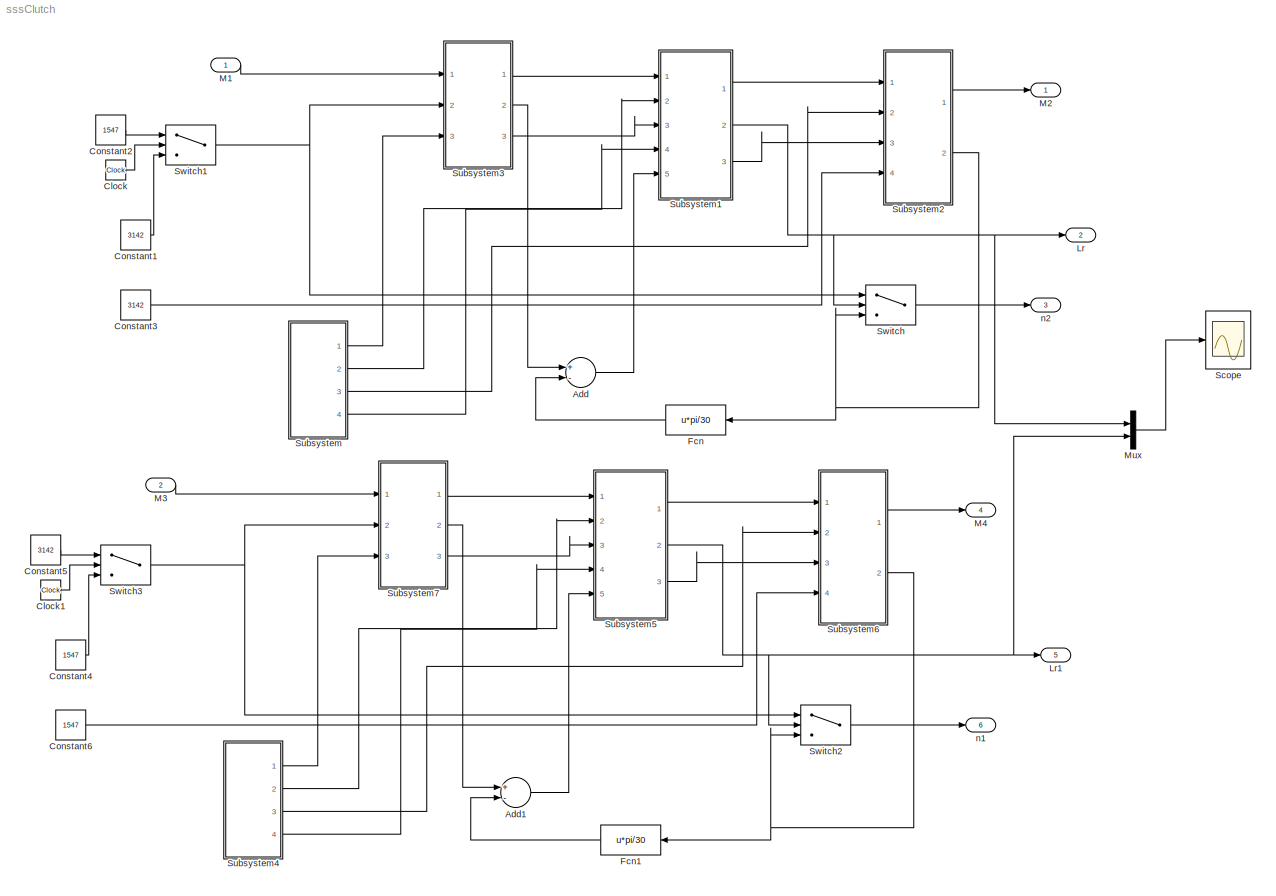
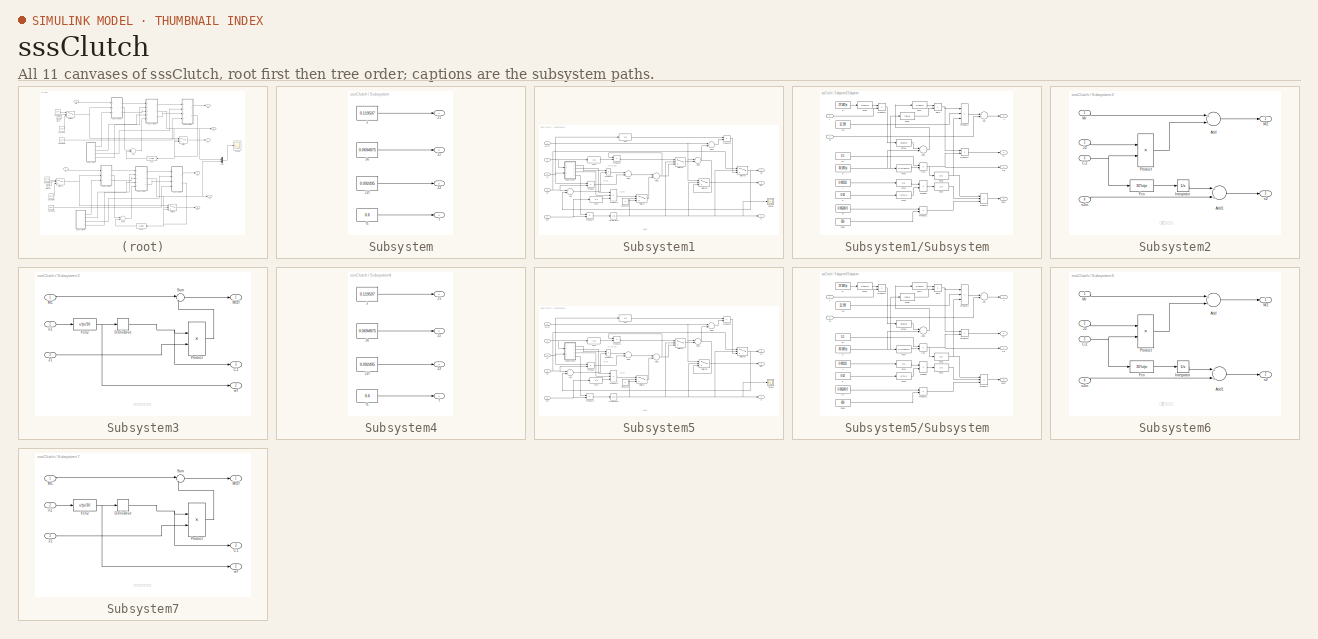
[diagram: thumbnail index - all 11 canvases of the model, root first then tree order]
MODEL sssClutch
KIND model
BLOCK [Sum] Add
  InputSameDT = off
  Inputs = +-
  OutDataTypeStr = Inherit: Inherit via internal rule
  Ports = [2, 1]
  SID = 2
  SaturateOnIntegerOverflow = off
BLOCK [Sum] Add1
  InputSameDT = off
  Inputs = +-
  OutDataTypeStr = Inherit: Inherit via internal rule
  Ports = [2, 1]
  SID = 223
  SaturateOnIntegerOverflow = off
BLOCK [Clock] Clock
  SID = 219
BLOCK [Clock] Clock1
  SID = 224
BLOCK [Constant] Constant1
  SID = 220
  Value = 3142
BLOCK [Constant] Constant2
  SID = 221
  Value = 1547
BLOCK [Constant] Constant3
  SID = 210
  Value = 3142
BLOCK [Constant] Constant4
  SID = 225
  Value = 1547
BLOCK [Constant] Constant5
  SID = 226
  Value = 3142
BLOCK [Constant] Constant6
  SID = 227
  Value = 1547
BLOCK [Fcn] Fcn
  Expr = u*pi/30
  SID = 43
BLOCK [Fcn] Fcn1
  Expr = u*pi/30
  SID = 228
BLOCK [Outport] Lr
  IconDisplay = Port number
  Port = 2
  SID = 45
BLOCK [Outport] Lr1
  IconDisplay = Port number
  Port = 5
  SID = 335
BLOCK [Inport] M1
  IconDisplay = Port number
  SID = 24
BLOCK [Outport] M2
  IconDisplay = Port number
  SID = 44
BLOCK [Inport] M3
  IconDisplay = Port number
  Port = 2
  SID = 222
BLOCK [Outport] M4
  IconDisplay = Port number
  Port = 4
  SID = 334
BLOCK [Mux] Mux
  DisplayOption = bar
  Inputs = 2
  Ports = [2, 1]
  SID = 337
BLOCK [Scope] Scope
  DataFormat = StructureWithTime
  Floating = off
  NumInputPorts = 1
  Ports = [1]
  SID = 208
  SampleTime = 0
  ShowLegends = off
  TimeRange = 100
  YMax = 15
  YMin = 0
BLOCK [SubSystem] Subsystem
  Ports = [0, 4]
  RequestExecContextInheritance = off
  SID = 12
BLOCK [Constant] Subsystem/J
  SID = 124
  Value = 0.119507
BLOCK [Outport] Subsystem/J1
  IconDisplay = Port number
  SID = 14
BLOCK [Outport] Subsystem/J2
  IconDisplay = Port number
  Port = 3
  SID = 37
BLOCK [Constant] Subsystem/J2l
  SID = 126
  Value = 0.092495
BLOCK [Constant] Subsystem/Jk
  SID = 125
  Value = 0.0694875
BLOCK [Outport] Subsystem/Jz
  IconDisplay = Port number
  Port = 2
  SID = 36
BLOCK [Outport] Subsystem/f
  IconDisplay = Port number
  Port = 4
  SID = 38
BLOCK [Constant] Subsystem/f1
  SID = 127
  Value = 0.6
BLOCK [SubSystem] Subsystem1
  Ports = [5, 3]
  RequestExecContextInheritance = off
  SID = 26
BLOCK [Sum] Subsystem1/Add
  InputSameDT = off
  Inputs = +-
  OutDataTypeStr = Inherit: Inherit via internal rule
  Ports = [2, 1]
  SID = 81
  SaturateOnIntegerOverflow = off
BLOCK [Sum] Subsystem1/Add1
  InputSameDT = off
  Inputs = +-
  OutDataTypeStr = Inherit: Inherit via internal rule
  Ports = [2, 1]
  SID = 82
  SaturateOnIntegerOverflow = off
BLOCK [Sum] Subsystem1/Add2
  InputSameDT = off
  Inputs = +-
  OutDataTypeStr = Inherit: Inherit via internal rule
  Ports = [2, 1]
  SID = 83
  SaturateOnIntegerOverflow = off
BLOCK [Sum] Subsystem1/Add3
  InputSameDT = off
  OutDataTypeStr = Inherit: Inherit via internal rule
  Ports = [2, 1]
  SID = 84
  SaturateOnIntegerOverflow = off
BLOCK [Sum] Subsystem1/Add4
  InputSameDT = off
  Inputs = +-
  OutDataTypeStr = Inherit: Inherit via internal rule
  Ports = [2, 1]
  SID = 85
  SaturateOnIntegerOverflow = off
BLOCK [Inport] Subsystem1/C1
  IconDisplay = Port number
  Port = 3
  SID = 78
BLOCK [Outport] Subsystem1/C2
  IconDisplay = Port number
  Port = 3
  SID = 110
BLOCK [Constant] Subsystem1/Constant
  SID = 86
  Value = 0
BLOCK [Fcn] Subsystem1/Fcn
  Expr = 1/u
  SID = 87
BLOCK [Fcn] Subsystem1/Fcn1
  Expr = 1+u
  SID = 88
BLOCK [Fcn] Subsystem1/Fcn2
  Expr = u^2
  SID = 89
BLOCK [Integrator] Subsystem1/Integrator
  InitialCondition = 15
  LimitOutput = on
  LowerSaturationLimit = 0
  Ports = [1, 1]
  SID = 202
  UpperSaturationLimit = 15
BLOCK [Inport] Subsystem1/Jz
  IconDisplay = Port number
  Port = 2
  SID = 77
BLOCK [Outport] Subsystem1/Lr
  IconDisplay = Port number
  Port = 2
  SID = 109
BLOCK [Inport] Subsystem1/Mfzf
  IconDisplay = Port number
  SID = 76
BLOCK [Outport] Subsystem1/Mr
  IconDisplay = Port number
  SID = 108
BLOCK [Product] Subsystem1/Product
  InputSameDT = off
  OutDataTypeStr = Inherit: Inherit via internal rule
  Ports = [2, 1]
  RndMeth = Floor
  SID = 91
  SaturateOnIntegerOverflow = off
BLOCK [Product] Subsystem1/Product1
  InputSameDT = off
  OutDataTypeStr = Inherit: Inherit via internal rule
  Ports = [2, 1]
  RndMeth = Floor
  SID = 92
  SaturateOnIntegerOverflow = off
BLOCK [Product] Subsystem1/Product2
  InputSameDT = off
  OutDataTypeStr = Inherit: Inherit via internal rule
  Ports = [2, 1]
  RndMeth = Floor
  SID = 93
  SaturateOnIntegerOverflow = off
BLOCK [Product] Subsystem1/Product3
  InputSameDT = off
  Inputs = 3
  OutDataTypeStr = Inherit: Inherit via internal rule
  Ports = [3, 1]
  RndMeth = Floor
  SID = 94
  SaturateOnIntegerOverflow = off
BLOCK [Product] Subsystem1/Product4
  InputSameDT = off
  OutDataTypeStr = Inherit: Inherit via internal rule
  Ports = [2, 1]
  RndMeth = Floor
  SID = 95
  SaturateOnIntegerOverflow = off
BLOCK [Product] Subsystem1/Product5
  InputSameDT = off
  OutDataTypeStr = Inherit: Inherit via internal rule
  Ports = [2, 1]
  RndMeth = Floor
  SID = 96
  SaturateOnIntegerOverflow = off
BLOCK [Scope] Subsystem1/Scope
  DataFormat = StructureWithTime
  Floating = off
  NumInputPorts = 1
  Ports = [1]
  SID = 201
  SampleTime = 0
  SaveName = ScopeData1
  ShowLegends = off
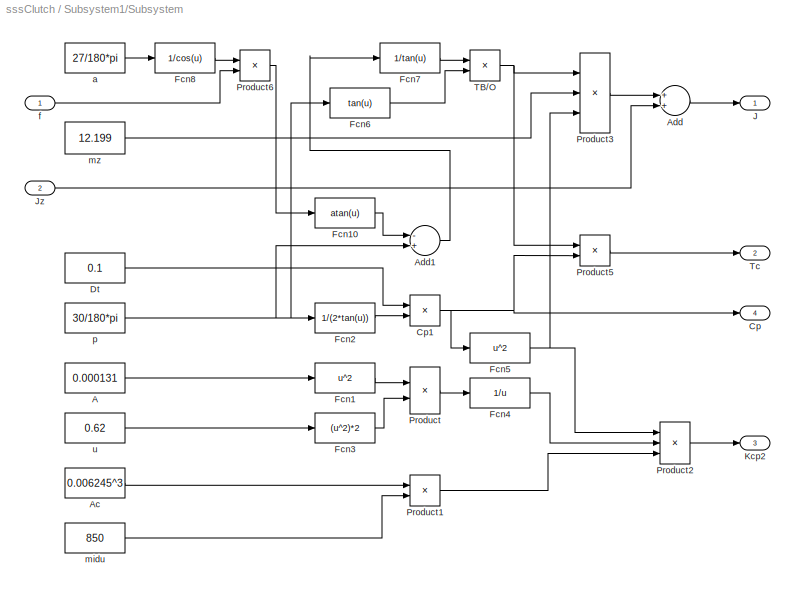
BLOCK [SubSystem] Subsystem1/Subsystem
  Ports = [2, 4]
  RequestExecContextInheritance = off
  SID = 97
BLOCK [Constant] Subsystem1/Subsystem/A
  SID = 163
  Value = 0.000131
BLOCK [Constant] Subsystem1/Subsystem/Ac
  SID = 164
  Value = 0.006245^3
BLOCK [Sum] Subsystem1/Subsystem/Add
  InputSameDT = off
  OutDataTypeStr = Inherit: Inherit via internal rule
  Ports = [2, 1]
  SID = 165
  SaturateOnIntegerOverflow = off
BLOCK [Sum] Subsystem1/Subsystem/Add1
  InputSameDT = off
  Inputs = -+
  OutDataTypeStr = Inherit: Inherit via internal rule
  Ports = [2, 1]
  SID = 166
  SaturateOnIntegerOverflow = off
BLOCK [Outport] Subsystem1/Subsystem/Cp
  IconDisplay = Port number
  Port = 4
  SID = 193
BLOCK [Product] Subsystem1/Subsystem/Cp1
  InputSameDT = off
  OutDataTypeStr = Inherit: Inherit via internal rule
  Ports = [2, 1]
  SID = 167
  SaturateOnIntegerOverflow = off
BLOCK [Constant] Subsystem1/Subsystem/Dt
  SID = 168
  Value = 0.1
BLOCK [Fcn] Subsystem1/Subsystem/Fcn1
  Expr = u^2
  SID = 169
BLOCK [Fcn] Subsystem1/Subsystem/Fcn10
  Expr = atan(u)
  SID = 170
BLOCK [Fcn] Subsystem1/Subsystem/Fcn2
  Expr = 1/(2*tan(u))
  SID = 171
BLOCK [Fcn] Subsystem1/Subsystem/Fcn3
  Expr = (u^2)*2
  SID = 172
BLOCK [Fcn] Subsystem1/Subsystem/Fcn4
  Expr = 1/u
  SID = 173
BLOCK [Fcn] Subsystem1/Subsystem/Fcn5
  Expr = u^2
  SID = 174
BLOCK [Fcn] Subsystem1/Subsystem/Fcn6
  Expr = tan(u)
  SID = 175
BLOCK [Fcn] Subsystem1/Subsystem/Fcn7
  Expr = 1/tan(u)
  SID = 176
BLOCK [Fcn] Subsystem1/Subsystem/Fcn8
  Expr = 1/cos(u)
  SID = 177
BLOCK [Outport] Subsystem1/Subsystem/J
  IconDisplay = Port number
  SID = 190
BLOCK [Inport] Subsystem1/Subsystem/Jz
  IconDisplay = Port number
  Port = 2
  SID = 162
BLOCK [Outport] Subsystem1/Subsystem/Kcp2
  IconDisplay = Port number
  Port = 3
  SID = 192
BLOCK [Product] Subsystem1/Subsystem/Product
  InputSameDT = off
  OutDataTypeStr = Inherit: Inherit via internal rule
  Ports = [2, 1]
  SID = 178
  SaturateOnIntegerOverflow = off
BLOCK [Product] Subsystem1/Subsystem/Product1
  InputSameDT = off
  OutDataTypeStr = Inherit: Inherit via internal rule
  Ports = [2, 1]
  SID = 179
  SaturateOnIntegerOverflow = off
BLOCK [Product] Subsystem1/Subsystem/Product2
  InputSameDT = off
  Inputs = 3
  OutDataTypeStr = Inherit: Inherit via internal rule
  Ports = [3, 1]
  SID = 180
  SaturateOnIntegerOverflow = off
BLOCK [Product] Subsystem1/Subsystem/Product3
  InputSameDT = off
  Inputs = 3
  OutDataTypeStr = Inherit: Inherit via internal rule
  Ports = [3, 1]
  SID = 181
  SaturateOnIntegerOverflow = off
BLOCK [Product] Subsystem1/Subsystem/Product5
  InputSameDT = off
  OutDataTypeStr = Inherit: Inherit via internal rule
  Ports = [2, 1]
  SID = 182
  SaturateOnIntegerOverflow = off
BLOCK [Product] Subsystem1/Subsystem/Product6
  InputSameDT = off
  OutDataTypeStr = Inherit: Inherit via internal rule
  Ports = [2, 1]
  SID = 183
  SaturateOnIntegerOverflow = off
BLOCK [Product] Subsystem1/Subsystem/TB//O
  InputSameDT = off
  OutDataTypeStr = Inherit: Inherit via internal rule
  Ports = [2, 1]
  SID = 184
  SaturateOnIntegerOverflow = off
BLOCK [Outport] Subsystem1/Subsystem/Tc
  IconDisplay = Port number
  Port = 2
  SID = 191
BLOCK [Constant] Subsystem1/Subsystem/a
  SID = 185
  Value = 27/180*pi
BLOCK [Inport] Subsystem1/Subsystem/f
  IconDisplay = Port number
  SID = 161
BLOCK [Constant] Subsystem1/Subsystem/midu
  SID = 186
  Value = 850
BLOCK [Constant] Subsystem1/Subsystem/mz
  SID = 187
  Value = 12.199
BLOCK [Constant] Subsystem1/Subsystem/p
  SID = 188
  Value = 30/180*pi
BLOCK [Constant] Subsystem1/Subsystem/u
  SID = 189
  Value = 0.62
BLOCK [Switch] Subsystem1/Switch
  InputSameDT = off
  SID = 104
  SaturateOnIntegerOverflow = off
BLOCK [Switch] Subsystem1/Switch1
  InputSameDT = off
  SID = 105
  SaturateOnIntegerOverflow = off
BLOCK [Switch] Subsystem1/Switch2
  InputSameDT = off
  SID = 106
  SaturateOnIntegerOverflow = off
BLOCK [Switch] Subsystem1/Switch3
  InputSameDT = off
  SID = 107
  SaturateOnIntegerOverflow = off
BLOCK [Inport] Subsystem1/Wz
  IconDisplay = Port number
  Port = 5
  SID = 80
BLOCK [Inport] Subsystem1/f
  IconDisplay = Port number
  Port = 4
  SID = 79
BLOCK [SubSystem] Subsystem2
  Ports = [4, 2]
  RequestExecContextInheritance = off
  SID = 9
BLOCK [Sum] Subsystem2/Add
  InputSameDT = off
  Inputs = +-
  OutDataTypeStr = Inherit: Inherit via internal rule
  Ports = [2, 1]
  SID = 116
  SaturateOnIntegerOverflow = off
BLOCK [Sum] Subsystem2/Add1
  InputSameDT = off
  OutDataTypeStr = Inherit: Inherit via internal rule
  Ports = [2, 1]
  SID = 117
  SaturateOnIntegerOverflow = off
BLOCK [Inport] Subsystem2/C2
  IconDisplay = Port number
  Port = 3
  SID = 114
BLOCK [Fcn] Subsystem2/Fcn
  Expr = 30*u/pi
  SID = 118
BLOCK [Integrator] Subsystem2/Integrator
  Ports = [1, 1]
  SID = 119
BLOCK [Inport] Subsystem2/J2
  IconDisplay = Port number
  Port = 2
  SID = 113
BLOCK [Outport] Subsystem2/M2
  IconDisplay = Port number
  SID = 121
BLOCK [Inport] Subsystem2/Mr
  IconDisplay = Port number
  SID = 112
BLOCK [Product] Subsystem2/Product
  InputSameDT = off
  OutDataTypeStr = Inherit: Inherit via internal rule
  Ports = [2, 1]
  RndMeth = Floor
  SID = 120
  SaturateOnIntegerOverflow = off
BLOCK [Outport] Subsystem2/n2
  IconDisplay = Port number
  Port = 2
  SID = 122
BLOCK [Inport] Subsystem2/n2in
  IconDisplay = Port number
  Port = 4
  SID = 115
BLOCK [SubSystem] Subsystem3
  Ports = [3, 3]
  RequestExecContextInheritance = off
  SID = 15
BLOCK [Outport] Subsystem3/C1
  IconDisplay = Port number
  Port = 3
  SID = 74
BLOCK [Derivative] Subsystem3/Derivative
  SID = 67
BLOCK [Fcn] Subsystem3/Fcn2
  Expr = u*pi/30
  SID = 68
BLOCK [Inport] Subsystem3/J1
  IconDisplay = Port number
  Port = 3
  SID = 64
BLOCK [Inport] Subsystem3/M1
  IconDisplay = Port number
  SID = 62
BLOCK [Outport] Subsystem3/Mfzf
  IconDisplay = Port number
  SID = 72
BLOCK [Product] Subsystem3/Product
  InputSameDT = off
  OutDataTypeStr = Inherit: Inherit via internal rule
  Ports = [2, 1]
  RndMeth = Floor
  SID = 69
  SaturateOnIntegerOverflow = off
BLOCK [Sum] Subsystem3/Sum
  IconShape = round
  InputSameDT = off
  Inputs = |+-
  OutDataTypeStr = Inherit: Inherit via internal rule
  Ports = [2, 1]
  SID = 70
  SaturateOnIntegerOverflow = off
BLOCK [Inport] Subsystem3/n1
  IconDisplay = Port number
  Port = 2
  SID = 63
BLOCK [Outport] Subsystem3/wf
  IconDisplay = Port number
  Port = 2
  SID = 73
BLOCK [SubSystem] Subsystem4
  Ports = [0, 4]
  RequestExecContextInheritance = off
  SID = 230
BLOCK [Constant] Subsystem4/J
  SID = 231
  Value = 0.119507
BLOCK [Outport] Subsystem4/J1
  IconDisplay = Port number
  SID = 235
BLOCK [Outport] Subsystem4/J2
  IconDisplay = Port number
  Port = 3
  SID = 237
BLOCK [Constant] Subsystem4/J2l
  SID = 232
  Value = 0.092495
BLOCK [Constant] Subsystem4/Jk
  SID = 233
  Value = 0.0694875
BLOCK [Outport] Subsystem4/Jz
  IconDisplay = Port number
  Port = 2
  SID = 236
BLOCK [Outport] Subsystem4/f
  IconDisplay = Port number
  Port = 4
  SID = 238
BLOCK [Constant] Subsystem4/f1
  SID = 234
  Value = 0.6
BLOCK [SubSystem] Subsystem5
  Ports = [5, 3]
  RequestExecContextInheritance = off
  SID = 239
BLOCK [Sum] Subsystem5/Add
  InputSameDT = off
  Inputs = +-
  OutDataTypeStr = Inherit: Inherit via internal rule
  Ports = [2, 1]
  SID = 245
  SaturateOnIntegerOverflow = off
BLOCK [Sum] Subsystem5/Add1
  InputSameDT = off
  Inputs = +-
  OutDataTypeStr = Inherit: Inherit via internal rule
  Ports = [2, 1]
  SID = 246
  SaturateOnIntegerOverflow = off
BLOCK [Sum] Subsystem5/Add2
  InputSameDT = off
  Inputs = +-
  OutDataTypeStr = Inherit: Inherit via internal rule
  Ports = [2, 1]
  SID = 247
  SaturateOnIntegerOverflow = off
BLOCK [Sum] Subsystem5/Add3
  InputSameDT = off
  OutDataTypeStr = Inherit: Inherit via internal rule
  Ports = [2, 1]
  SID = 248
  SaturateOnIntegerOverflow = off
BLOCK [Sum] Subsystem5/Add4
  InputSameDT = off
  Inputs = +-
  OutDataTypeStr = Inherit: Inherit via internal rule
  Ports = [2, 1]
  SID = 249
  SaturateOnIntegerOverflow = off
BLOCK [Inport] Subsystem5/C1
  IconDisplay = Port number
  Port = 3
  SID = 242
BLOCK [Outport] Subsystem5/C2
  IconDisplay = Port number
  Port = 3
  SID = 302
BLOCK [Constant] Subsystem5/Constant
  SID = 250
  Value = 0
BLOCK [Fcn] Subsystem5/Fcn
  Expr = 1/u
  SID = 251
BLOCK [Fcn] Subsystem5/Fcn1
  Expr = 1+u
  SID = 252
BLOCK [Fcn] Subsystem5/Fcn2
  Expr = u^2
  SID = 253
BLOCK [Integrator] Subsystem5/Integrator
  LimitOutput = on
  LowerSaturationLimit = 0
  Ports = [1, 1]
  SID = 254
  UpperSaturationLimit = 15
BLOCK [Inport] Subsystem5/Jz
  IconDisplay = Port number
  Port = 2
  SID = 241
BLOCK [Outport] Subsystem5/Lr
  IconDisplay = Port number
  Port = 2
  SID = 301
BLOCK [Inport] Subsystem5/Mfzf
  IconDisplay = Port number
  SID = 240
BLOCK [Outport] Subsystem5/Mr
  IconDisplay = Port number
  SID = 300
BLOCK [Product] Subsystem5/Product
  InputSameDT = off
  OutDataTypeStr = Inherit: Inherit via internal rule
  Ports = [2, 1]
  RndMeth = Floor
  SID = 255
  SaturateOnIntegerOverflow = off
BLOCK [Product] Subsystem5/Product1
  InputSameDT = off
  OutDataTypeStr = Inherit: Inherit via internal rule
  Ports = [2, 1]
  RndMeth = Floor
  SID = 256
  SaturateOnIntegerOverflow = off
BLOCK [Product] Subsystem5/Product2
  InputSameDT = off
  OutDataTypeStr = Inherit: Inherit via internal rule
  Ports = [2, 1]
  RndMeth = Floor
  SID = 257
  SaturateOnIntegerOverflow = off
BLOCK [Product] Subsystem5/Product3
  InputSameDT = off
  Inputs = 3
  OutDataTypeStr = Inherit: Inherit via internal rule
  Ports = [3, 1]
  RndMeth = Floor
  SID = 258
  SaturateOnIntegerOverflow = off
BLOCK [Product] Subsystem5/Product4
  InputSameDT = off
  OutDataTypeStr = Inherit: Inherit via internal rule
  Ports = [2, 1]
  RndMeth = Floor
  SID = 259
  SaturateOnIntegerOverflow = off
BLOCK [Product] Subsystem5/Product5
  InputSameDT = off
  OutDataTypeStr = Inherit: Inherit via internal rule
  Ports = [2, 1]
  RndMeth = Floor
  SID = 260
  SaturateOnIntegerOverflow = off
BLOCK [Scope] Subsystem5/Scope
  DataFormat = StructureWithTime
  Floating = off
  NumInputPorts = 1
  Ports = [1]
  SID = 261
  SampleTime = 0
  SaveName = ScopeData1
  ShowLegends = off
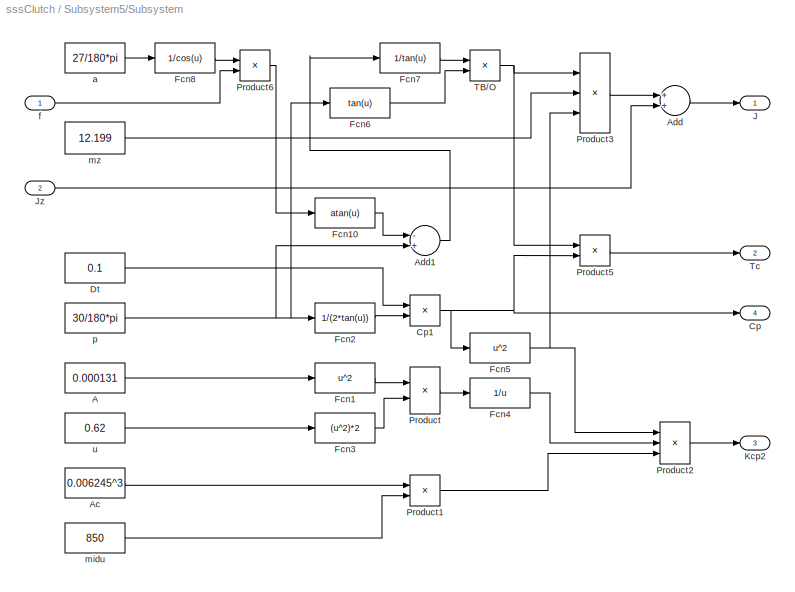
BLOCK [SubSystem] Subsystem5/Subsystem
  Ports = [2, 4]
  RequestExecContextInheritance = off
  SID = 262
BLOCK [Constant] Subsystem5/Subsystem/A
  SID = 265
  Value = 0.000131
BLOCK [Constant] Subsystem5/Subsystem/Ac
  SID = 266
  Value = 0.006245^3
BLOCK [Sum] Subsystem5/Subsystem/Add
  InputSameDT = off
  OutDataTypeStr = Inherit: Inherit via internal rule
  Ports = [2, 1]
  SID = 267
  SaturateOnIntegerOverflow = off
BLOCK [Sum] Subsystem5/Subsystem/Add1
  InputSameDT = off
  Inputs = -+
  OutDataTypeStr = Inherit: Inherit via internal rule
  Ports = [2, 1]
  SID = 268
  SaturateOnIntegerOverflow = off
BLOCK [Outport] Subsystem5/Subsystem/Cp
  IconDisplay = Port number
  Port = 4
  SID = 295
BLOCK [Product] Subsystem5/Subsystem/Cp1
  InputSameDT = off
  OutDataTypeStr = Inherit: Inherit via internal rule
  Ports = [2, 1]
  SID = 269
  SaturateOnIntegerOverflow = off
BLOCK [Constant] Subsystem5/Subsystem/Dt
  SID = 270
  Value = 0.1
BLOCK [Fcn] Subsystem5/Subsystem/Fcn1
  Expr = u^2
  SID = 271
BLOCK [Fcn] Subsystem5/Subsystem/Fcn10
  Expr = atan(u)
  SID = 272
BLOCK [Fcn] Subsystem5/Subsystem/Fcn2
  Expr = 1/(2*tan(u))
  SID = 273
BLOCK [Fcn] Subsystem5/Subsystem/Fcn3
  Expr = (u^2)*2
  SID = 274
BLOCK [Fcn] Subsystem5/Subsystem/Fcn4
  Expr = 1/u
  SID = 275
BLOCK [Fcn] Subsystem5/Subsystem/Fcn5
  Expr = u^2
  SID = 276
BLOCK [Fcn] Subsystem5/Subsystem/Fcn6
  Expr = tan(u)
  SID = 277
BLOCK [Fcn] Subsystem5/Subsystem/Fcn7
  Expr = 1/tan(u)
  SID = 278
BLOCK [Fcn] Subsystem5/Subsystem/Fcn8
  Expr = 1/cos(u)
  SID = 279
BLOCK [Outport] Subsystem5/Subsystem/J
  IconDisplay = Port number
  SID = 292
BLOCK [Inport] Subsystem5/Subsystem/Jz
  IconDisplay = Port number
  Port = 2
  SID = 264
BLOCK [Outport] Subsystem5/Subsystem/Kcp2
  IconDisplay = Port number
  Port = 3
  SID = 294
BLOCK [Product] Subsystem5/Subsystem/Product
  InputSameDT = off
  OutDataTypeStr = Inherit: Inherit via internal rule
  Ports = [2, 1]
  SID = 280
  SaturateOnIntegerOverflow = off
BLOCK [Product] Subsystem5/Subsystem/Product1
  InputSameDT = off
  OutDataTypeStr = Inherit: Inherit via internal rule
  Ports = [2, 1]
  SID = 281
  SaturateOnIntegerOverflow = off
BLOCK [Product] Subsystem5/Subsystem/Product2
  InputSameDT = off
  Inputs = 3
  OutDataTypeStr = Inherit: Inherit via internal rule
  Ports = [3, 1]
  SID = 282
  SaturateOnIntegerOverflow = off
BLOCK [Product] Subsystem5/Subsystem/Product3
  InputSameDT = off
  Inputs = 3
  OutDataTypeStr = Inherit: Inherit via internal rule
  Ports = [3, 1]
  SID = 283
  SaturateOnIntegerOverflow = off
BLOCK [Product] Subsystem5/Subsystem/Product5
  InputSameDT = off
  OutDataTypeStr = Inherit: Inherit via internal rule
  Ports = [2, 1]
  SID = 284
  SaturateOnIntegerOverflow = off
BLOCK [Product] Subsystem5/Subsystem/Product6
  InputSameDT = off
  OutDataTypeStr = Inherit: Inherit via internal rule
  Ports = [2, 1]
  SID = 285
  SaturateOnIntegerOverflow = off
BLOCK [Product] Subsystem5/Subsystem/TB//O
  InputSameDT = off
  OutDataTypeStr = Inherit: Inherit via internal rule
  Ports = [2, 1]
  SID = 286
  SaturateOnIntegerOverflow = off
BLOCK [Outport] Subsystem5/Subsystem/Tc
  IconDisplay = Port number
  Port = 2
  SID = 293
BLOCK [Constant] Subsystem5/Subsystem/a
  SID = 287
  Value = 27/180*pi
BLOCK [Inport] Subsystem5/Subsystem/f
  IconDisplay = Port number
  SID = 263
BLOCK [Constant] Subsystem5/Subsystem/midu
  SID = 288
  Value = 850
BLOCK [Constant] Subsystem5/Subsystem/mz
  SID = 289
  Value = 12.199
BLOCK [Constant] Subsystem5/Subsystem/p
  SID = 290
  Value = 30/180*pi
BLOCK [Constant] Subsystem5/Subsystem/u
  SID = 291
  Value = 0.62
BLOCK [Switch] Subsystem5/Switch
  InputSameDT = off
  SID = 296
  SaturateOnIntegerOverflow = off
BLOCK [Switch] Subsystem5/Switch1
  InputSameDT = off
  SID = 297
  SaturateOnIntegerOverflow = off
BLOCK [Switch] Subsystem5/Switch2
  InputSameDT = off
  SID = 298
  SaturateOnIntegerOverflow = off
BLOCK [Switch] Subsystem5/Switch3
  InputSameDT = off
  SID = 299
  SaturateOnIntegerOverflow = off
BLOCK [Inport] Subsystem5/Wz
  IconDisplay = Port number
  Port = 5
  SID = 244
BLOCK [Inport] Subsystem5/f
  IconDisplay = Port number
  Port = 4
  SID = 243
BLOCK [SubSystem] Subsystem6
  Ports = [4, 2]
  RequestExecContextInheritance = off
  SID = 307
BLOCK [Sum] Subsystem6/Add
  InputSameDT = off
  Inputs = +-
  OutDataTypeStr = Inherit: Inherit via internal rule
  Ports = [2, 1]
  SID = 312
  SaturateOnIntegerOverflow = off
BLOCK [Sum] Subsystem6/Add1
  InputSameDT = off
  OutDataTypeStr = Inherit: Inherit via internal rule
  Ports = [2, 1]
  SID = 313
  SaturateOnIntegerOverflow = off
BLOCK [Inport] Subsystem6/C2
  IconDisplay = Port number
  Port = 3
  SID = 310
BLOCK [Fcn] Subsystem6/Fcn
  Expr = 30*u/pi
  SID = 314
BLOCK [Integrator] Subsystem6/Integrator
  Ports = [1, 1]
  SID = 315
BLOCK [Inport] Subsystem6/J2
  IconDisplay = Port number
  Port = 2
  SID = 309
BLOCK [Outport] Subsystem6/M2
  IconDisplay = Port number
  SID = 317
BLOCK [Inport] Subsystem6/Mr
  IconDisplay = Port number
  SID = 308
BLOCK [Product] Subsystem6/Product
  InputSameDT = off
  OutDataTypeStr = Inherit: Inherit via internal rule
  Ports = [2, 1]
  RndMeth = Floor
  SID = 316
  SaturateOnIntegerOverflow = off
BLOCK [Outport] Subsystem6/n2
  IconDisplay = Port number
  Port = 2
  SID = 318
BLOCK [Inport] Subsystem6/n2in
  IconDisplay = Port number
  Port = 4
  SID = 311
BLOCK [SubSystem] Subsystem7
  Ports = [3, 3]
  RequestExecContextInheritance = off
  SID = 320
BLOCK [Outport] Subsystem7/C1
  IconDisplay = Port number
  Port = 3
  SID = 330
BLOCK [Derivative] Subsystem7/Derivative
  SID = 324
BLOCK [Fcn] Subsystem7/Fcn2
  Expr = u*pi/30
  SID = 325
BLOCK [Inport] Subsystem7/J1
  IconDisplay = Port number
  Port = 3
  SID = 323
BLOCK [Inport] Subsystem7/M1
  IconDisplay = Port number
  SID = 321
BLOCK [Outport] Subsystem7/Mfzf
  IconDisplay = Port number
  SID = 328
BLOCK [Product] Subsystem7/Product
  InputSameDT = off
  OutDataTypeStr = Inherit: Inherit via internal rule
  Ports = [2, 1]
  RndMeth = Floor
  SID = 326
  SaturateOnIntegerOverflow = off
BLOCK [Sum] Subsystem7/Sum
  IconShape = round
  InputSameDT = off
  Inputs = |+-
  OutDataTypeStr = Inherit: Inherit via internal rule
  Ports = [2, 1]
  SID = 327
  SaturateOnIntegerOverflow = off
BLOCK [Inport] Subsystem7/n1
  IconDisplay = Port number
  Port = 2
  SID = 322
BLOCK [Outport] Subsystem7/wf
  IconDisplay = Port number
  Port = 2
  SID = 329
BLOCK [Switch] Switch
  InputSameDT = off
  SID = 5
  SaturateOnIntegerOverflow = off
BLOCK [Switch] Switch1
  InputSameDT = off
  SID = 218
  SaturateOnIntegerOverflow = off
  Threshold = 55
BLOCK [Switch] Switch2
  InputSameDT = off
  SID = 332
  SaturateOnIntegerOverflow = off
BLOCK [Switch] Switch3
  InputSameDT = off
  SID = 333
  SaturateOnIntegerOverflow = off
  Threshold = 55
BLOCK [Outport] n1
  IconDisplay = Port number
  Port = 6
  SID = 336
BLOCK [Outport] n2
  IconDisplay = Port number
  Port = 3
  SID = 46
ANNOTATION (root): \n \n
ANNOTATION Subsystem1: \n \n 中间件
ANNOTATION Subsystem1: J*(C1-C2)
ANNOTATION Subsystem1: Jz*C1
ANNOTATION Subsystem1: Tc*Fr
ANNOTATION Subsystem2: \n \n 从动件
ANNOTATION Subsystem3: \n \n 主动件
ANNOTATION Subsystem5: \n \n 中间件
ANNOTATION Subsystem5: J*(C1-C2)
ANNOTATION Subsystem5: Jz*C1
ANNOTATION Subsystem5: Tc*Fr
ANNOTATION Subsystem6: \n \n 从动件
ANNOTATION Subsystem7: \n \n 主动件
LINE Add1:1 -> Subsystem5:5
LINE Add:1 -> Subsystem1:5
LINE Clock1:1 -> Switch3:2
LINE Clock:1 -> Switch1:2
LINE Constant1:1 -> Switch1:3
LINE Constant2:1 -> Switch1:1
LINE Constant3:1 -> Subsystem2:4
LINE Constant4:1 -> Switch3:3
LINE Constant5:1 -> Switch3:1
LINE Constant6:1 -> Subsystem6:4
LINE Fcn1:1 -> Add1:2
LINE Fcn:1 -> Add:2
LINE M1:1 -> Subsystem3:1
LINE M3:1 -> Subsystem7:1
LINE Mux:1 -> Scope:1
LINE Subsystem/J2l:1 -> Subsystem/J2:1
LINE Subsystem/J:1 -> Subsystem/J1:1
LINE Subsystem/Jk:1 -> Subsystem/Jz:1
LINE Subsystem/f1:1 -> Subsystem/f:1
LINE Subsystem1/Add1:1 -> Subsystem1/Add3:1
LINE Subsystem1/Add2:1 -> Subsystem1/Product5:2
NET Subsystem1/Add3:1 -> Subsystem1/Product1:1, Subsystem1/Switch1:3
NET Subsystem1/Add4:1 -> Subsystem1/Add2:2, Subsystem1/Switch2:3
LINE Subsystem1/Add:1 -> Subsystem1/Product2:2
NET Subsystem1/C1:1 -> Subsystem1/Add:1, Subsystem1/Product:2, Subsystem1/Switch3:1
LINE Subsystem1/Constant:1 -> Subsystem1/Switch:3
LINE Subsystem1/Fcn1:1 -> Subsystem1/Product1:2
LINE Subsystem1/Fcn2:1 -> Subsystem1/Product3:3
LINE Subsystem1/Fcn:1 -> Subsystem1/Product5:1
NET Subsystem1/Integrator:1 -> Subsystem1/Lr:1, Subsystem1/Scope:1, Subsystem1/Switch1:2, Subsystem1/Switch2:2, Subsystem1/Switch3:2, Subsystem1/Switch:2
NET Subsystem1/Jz:1 -> Subsystem1/Fcn:1, Subsystem1/Product:1, Subsystem1/Subsystem:2
NET Subsystem1/Mfzf:1 -> Subsystem1/Add2:1, Subsystem1/Add4:1, Subsystem1/Switch2:1
LINE Subsystem1/Product1:1 -> Subsystem1/Switch1:1
LINE Subsystem1/Product2:1 -> Subsystem1/Add1:1
LINE Subsystem1/Product3:1 -> Subsystem1/Switch:1
LINE Subsystem1/Product4:1 -> Subsystem1/Integrator:1
LINE Subsystem1/Product5:1 -> Subsystem1/Switch3:3
LINE Subsystem1/Product:1 -> Subsystem1/Add1:2
LINE Subsystem1/Subsystem/A:1 -> Subsystem1/Subsystem/Fcn1:1
LINE Subsystem1/Subsystem/Ac:1 -> Subsystem1/Subsystem/Product1:1
LINE Subsystem1/Subsystem/Add1:1 -> Subsystem1/Subsystem/Fcn7:1
LINE Subsystem1/Subsystem/Add:1 -> Subsystem1/Subsystem/J:1
NET Subsystem1/Subsystem/Cp1:1 -> Subsystem1/Subsystem/Cp:1, Subsystem1/Subsystem/Fcn5:1, Subsystem1/Subsystem/Product5:2
LINE Subsystem1/Subsystem/Dt:1 -> Subsystem1/Subsystem/Cp1:1
LINE Subsystem1/Subsystem/Fcn10:1 -> Subsystem1/Subsystem/Add1:1
LINE Subsystem1/Subsystem/Fcn1:1 -> Subsystem1/Subsystem/Product:1
LINE Subsystem1/Subsystem/Fcn2:1 -> Subsystem1/Subsystem/Cp1:2
LINE Subsystem1/Subsystem/Fcn3:1 -> Subsystem1/Subsystem/Product:2
LINE Subsystem1/Subsystem/Fcn4:1 -> Subsystem1/Subsystem/Product2:2
NET Subsystem1/Subsystem/Fcn5:1 -> Subsystem1/Subsystem/Product2:1, Subsystem1/Subsystem/Product3:3
LINE Subsystem1/Subsystem/Fcn6:1 -> Subsystem1/Subsystem/TB//O:2
LINE Subsystem1/Subsystem/Fcn7:1 -> Subsystem1/Subsystem/TB//O:1
LINE Subsystem1/Subsystem/Fcn8:1 -> Subsystem1/Subsystem/Product6:1
LINE Subsystem1/Subsystem/Jz:1 -> Subsystem1/Subsystem/Add:2
LINE Subsystem1/Subsystem/Product1:1 -> Subsystem1/Subsystem/Product2:3
LINE Subsystem1/Subsystem/Product2:1 -> Subsystem1/Subsystem/Kcp2:1
LINE Subsystem1/Subsystem/Product3:1 -> Subsystem1/Subsystem/Add:1
LINE Subsystem1/Subsystem/Product5:1 -> Subsystem1/Subsystem/Tc:1
LINE Subsystem1/Subsystem/Product6:1 -> Subsystem1/Subsystem/Fcn10:1
LINE Subsystem1/Subsystem/Product:1 -> Subsystem1/Subsystem/Fcn4:1
NET Subsystem1/Subsystem/TB//O:1 -> Subsystem1/Subsystem/Product3:1, Subsystem1/Subsystem/Product5:1
LINE Subsystem1/Subsystem/a:1 -> Subsystem1/Subsystem/Fcn8:1
LINE Subsystem1/Subsystem/f:1 -> Subsystem1/Subsystem/Product6:2
LINE Subsystem1/Subsystem/midu:1 -> Subsystem1/Subsystem/Product1:2
LINE Subsystem1/Subsystem/mz:1 -> Subsystem1/Subsystem/Product3:2
NET Subsystem1/Subsystem/p:1 -> Subsystem1/Subsystem/Add1:2, Subsystem1/Subsystem/Fcn2:1, Subsystem1/Subsystem/Fcn6:1
LINE Subsystem1/Subsystem/u:1 -> Subsystem1/Subsystem/Fcn3:1
LINE Subsystem1/Subsystem:1 -> Subsystem1/Product2:1
LINE Subsystem1/Subsystem:2 -> Subsystem1/Product3:1
LINE Subsystem1/Subsystem:3 -> Subsystem1/Product3:2
LINE Subsystem1/Subsystem:4 -> Subsystem1/Product4:1
LINE Subsystem1/Switch1:1 -> Subsystem1/Add4:2
LINE Subsystem1/Switch2:1 -> Subsystem1/Mr:1
NET Subsystem1/Switch3:1 -> Subsystem1/Add:2, Subsystem1/C2:1
LINE Subsystem1/Switch:1 -> Subsystem1/Add3:2
NET Subsystem1/Wz:1 -> Subsystem1/Fcn2:1, Subsystem1/Product4:2
NET Subsystem1/f:1 -> Subsystem1/Fcn1:1, Subsystem1/Subsystem:1
LINE Subsystem1:1 -> Subsystem2:1
NET Subsystem1:2 -> Lr:1, Mux:1, Switch:2
LINE Subsystem1:3 -> Subsystem2:3
LINE Subsystem2/Add1:1 -> Subsystem2/n2:1
LINE Subsystem2/Add:1 -> Subsystem2/M2:1
NET Subsystem2/C2:1 -> Subsystem2/Fcn:1, Subsystem2/Product:2
LINE Subsystem2/Fcn:1 -> Subsystem2/Integrator:1
LINE Subsystem2/Integrator:1 -> Subsystem2/Add1:1
LINE Subsystem2/J2:1 -> Subsystem2/Product:1
LINE Subsystem2/Mr:1 -> Subsystem2/Add:1
LINE Subsystem2/Product:1 -> Subsystem2/Add:2
LINE Subsystem2/n2in:1 -> Subsystem2/Add1:2
LINE Subsystem2:1 -> M2:1
NET Subsystem2:2 -> Fcn:1, Switch:3
NET Subsystem3/Derivative:1 -> Subsystem3/C1:1, Subsystem3/Product:1
NET Subsystem3/Fcn2:1 -> Subsystem3/Derivative:1, Subsystem3/wf:1
LINE Subsystem3/J1:1 -> Subsystem3/Product:2
LINE Subsystem3/M1:1 -> Subsystem3/Sum:1
LINE Subsystem3/Product:1 -> Subsystem3/Sum:2
LINE Subsystem3/Sum:1 -> Subsystem3/Mfzf:1
LINE Subsystem3/n1:1 -> Subsystem3/Fcn2:1
LINE Subsystem3:1 -> Subsystem1:1
LINE Subsystem3:2 -> Add:1
LINE Subsystem3:3 -> Subsystem1:3
LINE Subsystem4/J2l:1 -> Subsystem4/J2:1
LINE Subsystem4/J:1 -> Subsystem4/J1:1
LINE Subsystem4/Jk:1 -> Subsystem4/Jz:1
LINE Subsystem4/f1:1 -> Subsystem4/f:1
LINE Subsystem4:1 -> Subsystem7:3
LINE Subsystem4:2 -> Subsystem5:2
LINE Subsystem4:3 -> Subsystem6:2
LINE Subsystem4:4 -> Subsystem5:4
LINE Subsystem5/Add1:1 -> Subsystem5/Add3:1
LINE Subsystem5/Add2:1 -> Subsystem5/Product5:2
NET Subsystem5/Add3:1 -> Subsystem5/Product1:1, Subsystem5/Switch1:3
NET Subsystem5/Add4:1 -> Subsystem5/Add2:2, Subsystem5/Switch2:3
LINE Subsystem5/Add:1 -> Subsystem5/Product2:2
NET Subsystem5/C1:1 -> Subsystem5/Add:1, Subsystem5/Product:2, Subsystem5/Switch3:1
LINE Subsystem5/Constant:1 -> Subsystem5/Switch:3
LINE Subsystem5/Fcn1:1 -> Subsystem5/Product1:2
LINE Subsystem5/Fcn2:1 -> Subsystem5/Product3:3
LINE Subsystem5/Fcn:1 -> Subsystem5/Product5:1
NET Subsystem5/Integrator:1 -> Subsystem5/Lr:1, Subsystem5/Scope:1, Subsystem5/Switch1:2, Subsystem5/Switch2:2, Subsystem5/Switch3:2, Subsystem5/Switch:2
NET Subsystem5/Jz:1 -> Subsystem5/Fcn:1, Subsystem5/Product:1, Subsystem5/Subsystem:2
NET Subsystem5/Mfzf:1 -> Subsystem5/Add2:1, Subsystem5/Add4:1, Subsystem5/Switch2:1
LINE Subsystem5/Product1:1 -> Subsystem5/Switch1:1
LINE Subsystem5/Product2:1 -> Subsystem5/Add1:1
LINE Subsystem5/Product3:1 -> Subsystem5/Switch:1
LINE Subsystem5/Product4:1 -> Subsystem5/Integrator:1
LINE Subsystem5/Product5:1 -> Subsystem5/Switch3:3
LINE Subsystem5/Product:1 -> Subsystem5/Add1:2
LINE Subsystem5/Subsystem/A:1 -> Subsystem5/Subsystem/Fcn1:1
LINE Subsystem5/Subsystem/Ac:1 -> Subsystem5/Subsystem/Product1:1
LINE Subsystem5/Subsystem/Add1:1 -> Subsystem5/Subsystem/Fcn7:1
LINE Subsystem5/Subsystem/Add:1 -> Subsystem5/Subsystem/J:1
NET Subsystem5/Subsystem/Cp1:1 -> Subsystem5/Subsystem/Cp:1, Subsystem5/Subsystem/Fcn5:1, Subsystem5/Subsystem/Product5:2
LINE Subsystem5/Subsystem/Dt:1 -> Subsystem5/Subsystem/Cp1:1
LINE Subsystem5/Subsystem/Fcn10:1 -> Subsystem5/Subsystem/Add1:1
LINE Subsystem5/Subsystem/Fcn1:1 -> Subsystem5/Subsystem/Product:1
LINE Subsystem5/Subsystem/Fcn2:1 -> Subsystem5/Subsystem/Cp1:2
LINE Subsystem5/Subsystem/Fcn3:1 -> Subsystem5/Subsystem/Product:2
LINE Subsystem5/Subsystem/Fcn4:1 -> Subsystem5/Subsystem/Product2:2
NET Subsystem5/Subsystem/Fcn5:1 -> Subsystem5/Subsystem/Product2:1, Subsystem5/Subsystem/Product3:3
LINE Subsystem5/Subsystem/Fcn6:1 -> Subsystem5/Subsystem/TB//O:2
LINE Subsystem5/Subsystem/Fcn7:1 -> Subsystem5/Subsystem/TB//O:1
LINE Subsystem5/Subsystem/Fcn8:1 -> Subsystem5/Subsystem/Product6:1
LINE Subsystem5/Subsystem/Jz:1 -> Subsystem5/Subsystem/Add:2
LINE Subsystem5/Subsystem/Product1:1 -> Subsystem5/Subsystem/Product2:3
LINE Subsystem5/Subsystem/Product2:1 -> Subsystem5/Subsystem/Kcp2:1
LINE Subsystem5/Subsystem/Product3:1 -> Subsystem5/Subsystem/Add:1
LINE Subsystem5/Subsystem/Product5:1 -> Subsystem5/Subsystem/Tc:1
LINE Subsystem5/Subsystem/Product6:1 -> Subsystem5/Subsystem/Fcn10:1
LINE Subsystem5/Subsystem/Product:1 -> Subsystem5/Subsystem/Fcn4:1
NET Subsystem5/Subsystem/TB//O:1 -> Subsystem5/Subsystem/Product3:1, Subsystem5/Subsystem/Product5:1
LINE Subsystem5/Subsystem/a:1 -> Subsystem5/Subsystem/Fcn8:1
LINE Subsystem5/Subsystem/f:1 -> Subsystem5/Subsystem/Product6:2
LINE Subsystem5/Subsystem/midu:1 -> Subsystem5/Subsystem/Product1:2
LINE Subsystem5/Subsystem/mz:1 -> Subsystem5/Subsystem/Product3:2
NET Subsystem5/Subsystem/p:1 -> Subsystem5/Subsystem/Add1:2, Subsystem5/Subsystem/Fcn2:1, Subsystem5/Subsystem/Fcn6:1
LINE Subsystem5/Subsystem/u:1 -> Subsystem5/Subsystem/Fcn3:1
LINE Subsystem5/Subsystem:1 -> Subsystem5/Product2:1
LINE Subsystem5/Subsystem:2 -> Subsystem5/Product3:1
LINE Subsystem5/Subsystem:3 -> Subsystem5/Product3:2
LINE Subsystem5/Subsystem:4 -> Subsystem5/Product4:1
LINE Subsystem5/Switch1:1 -> Subsystem5/Add4:2
LINE Subsystem5/Switch2:1 -> Subsystem5/Mr:1
NET Subsystem5/Switch3:1 -> Subsystem5/Add:2, Subsystem5/C2:1
LINE Subsystem5/Switch:1 -> Subsystem5/Add3:2
NET Subsystem5/Wz:1 -> Subsystem5/Fcn2:1, Subsystem5/Product4:2
NET Subsystem5/f:1 -> Subsystem5/Fcn1:1, Subsystem5/Subsystem:1
LINE Subsystem5:1 -> Subsystem6:1
NET Subsystem5:2 -> Lr1:1, Mux:2, Switch2:2
LINE Subsystem5:3 -> Subsystem6:3
LINE Subsystem6/Add1:1 -> Subsystem6/n2:1
LINE Subsystem6/Add:1 -> Subsystem6/M2:1
NET Subsystem6/C2:1 -> Subsystem6/Fcn:1, Subsystem6/Product:2
LINE Subsystem6/Fcn:1 -> Subsystem6/Integrator:1
LINE Subsystem6/Integrator:1 -> Subsystem6/Add1:1
LINE Subsystem6/J2:1 -> Subsystem6/Product:1
LINE Subsystem6/Mr:1 -> Subsystem6/Add:1
LINE Subsystem6/Product:1 -> Subsystem6/Add:2
LINE Subsystem6/n2in:1 -> Subsystem6/Add1:2
LINE Subsystem6:1 -> M4:1
NET Subsystem6:2 -> Fcn1:1, Switch2:3
NET Subsystem7/Derivative:1 -> Subsystem7/C1:1, Subsystem7/Product:1
NET Subsystem7/Fcn2:1 -> Subsystem7/Derivative:1, Subsystem7/wf:1
LINE Subsystem7/J1:1 -> Subsystem7/Product:2
LINE Subsystem7/M1:1 -> Subsystem7/Sum:1
LINE Subsystem7/Product:1 -> Subsystem7/Sum:2
LINE Subsystem7/Sum:1 -> Subsystem7/Mfzf:1
LINE Subsystem7/n1:1 -> Subsystem7/Fcn2:1
LINE Subsystem7:1 -> Subsystem5:1
LINE Subsystem7:2 -> Add1:1
LINE Subsystem7:3 -> Subsystem5:3
LINE Subsystem:1 -> Subsystem3:3
LINE Subsystem:2 -> Subsystem1:2
LINE Subsystem:3 -> Subsystem2:2
LINE Subsystem:4 -> Subsystem1:4
NET Switch1:1 -> Subsystem3:2, Switch:1
LINE Switch2:1 -> n1:1
NET Switch3:1 -> Subsystem7:2, Switch2:1
LINE Switch:1 -> n2:1
note: NET lines group one-source signal fan-out (src -> all destinations, sorted); 1:1 wires keep LINE
